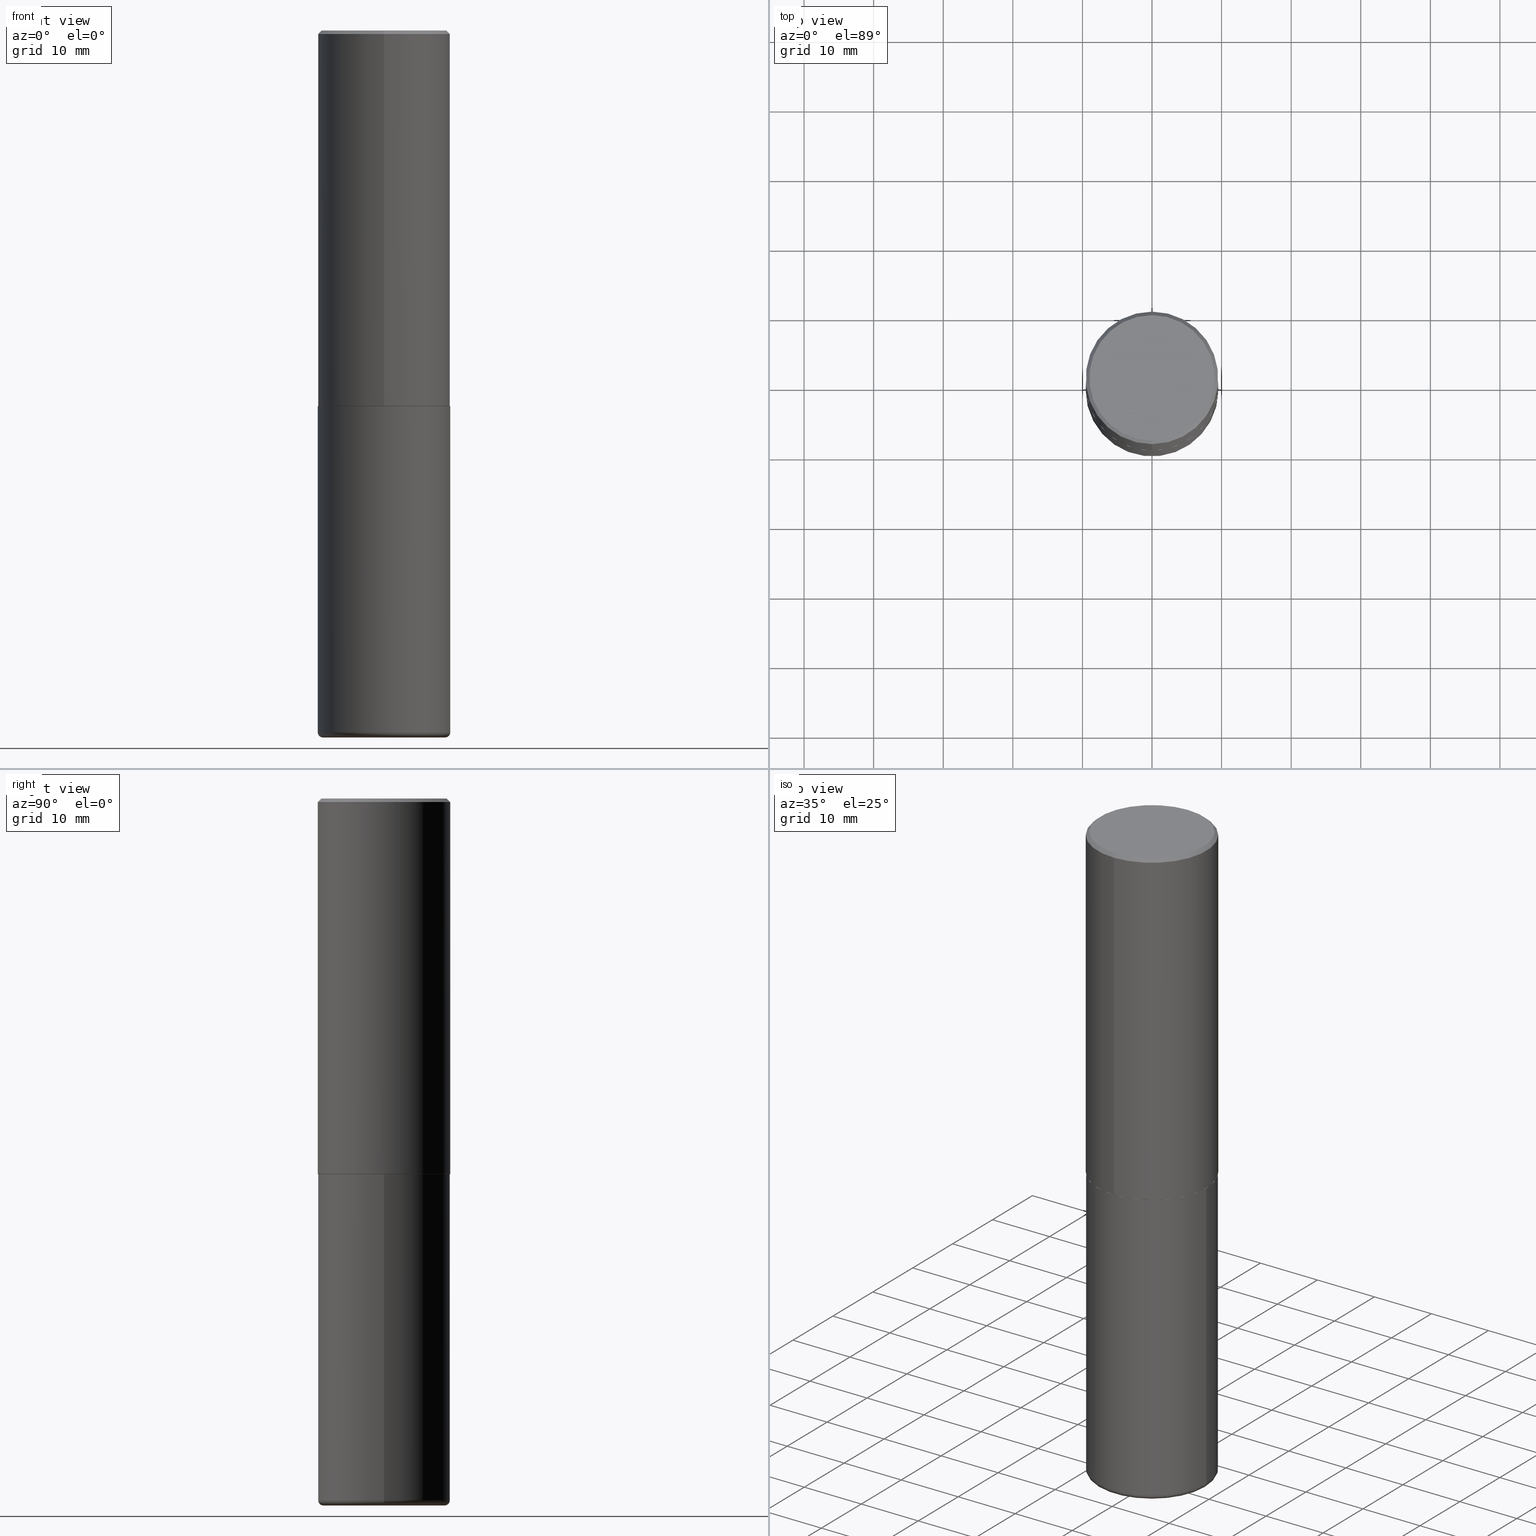
[diagram: canonical four-view strip — front | top / right | iso, engineering-drawing reading convention]
A machine part, canonical four-view strip (front | top / right | iso — engineering-drawing reading convention). The complete STEP part file that produces these views, byte-faithful:
ISO-10303-21;
HEADER;
FILE_DESCRIPTION (( 'STEP AP203' ),
    '1' );
FILE_NAME ('77251.STEP',
    '2024-03-06T16:38:52',
    ( '' ),
    ( '' ),
    'SwSTEP 2.0',
    'SolidWorks 2023',
    '' );
FILE_SCHEMA (( 'CONFIG_CONTROL_DESIGN' ));
ENDSEC;

DATA;
#1 = DIRECTION ( 'NONE',  ( -2.445468806185136597E-29, 3.491481338843145583E-15, 1.000000000000000000 ) ) ;
#2 = CARTESIAN_POINT ( 'NONE',  ( 2.664535259100376880E-15, 0.3750000000000002220, -1.309772154642007612E-15 ) ) ;
#3 = EDGE_CURVE ( 'NONE', #316, #27, #89, .T. ) ;
#4 = EDGE_LOOP ( 'NONE', ( #300, #8 ) ) ;
#5 = AXIS2_PLACEMENT_3D ( 'NONE', #256, #184, #371 ) ;
#6 = CIRCLE ( 'NONE', #347, 0.02999999999999995379 ) ;
#7 = CARTESIAN_POINT ( 'NONE',  ( -1.576020116281570290E-45, 2.251741140787182714E-31, 6.446945178995578068E-17 ) ) ;
#8 = ORIENTED_EDGE ( 'NONE', *, *, #265, .T. ) ;
#9 = ADVANCED_FACE ( 'NONE', ( #55 ), #58, .F. ) ;
#10 = ORIENTED_EDGE ( 'NONE', *, *, #336, .F. ) ;
#11 = ORIENTED_EDGE ( 'NONE', *, *, #405, .T. ) ;
#12 = AXIS2_PLACEMENT_3D ( 'NONE', #68, #164, #163 ) ;
#13 = LINE ( 'NONE', #235, #143 ) ;
#14 = ORIENTED_EDGE ( 'NONE', *, *, #153, .F. ) ;
#15 = DATE_TIME_ROLE ( 'classification_date' ) ;
#16 = ORIENTED_EDGE ( 'NONE', *, *, #367, .T. ) ;
#17 = COORDINATED_UNIVERSAL_TIME_OFFSET ( 5, 0, .BEHIND. ) ;
#18 = CARTESIAN_POINT ( 'NONE',  ( 0.000000000000000000, 0.000000000000000000, 0.000000000000000000 ) ) ;
#19 = EDGE_CURVE ( 'NONE', #272, #74, #225, .T. ) ;
#20 = CALENDAR_DATE ( 2024, 6, 3 ) ;
#21 = CIRCLE ( 'NONE', #182, 0.3549999999999999822 ) ;
#22 = AXIS2_PLACEMENT_3D ( 'NONE', #398, #156, #368 ) ;
#23 = CARTESIAN_POINT ( 'NONE',  ( 4.889199683026055945E-31, -6.985451491424065481E-17, -0.02000000000000008715 ) ) ;
#24 = APPROVAL_ROLE ( '' ) ;
#25 = FACE_OUTER_BOUND ( 'NONE', #168, .T. ) ;
#26 = APPLICATION_PROTOCOL_DEFINITION ( 'international standard', 'config_control_design', 1994, #174 ) ;
#27 = VERTEX_POINT ( 'NONE', #149 ) ;
#28 = DIRECTION ( 'NONE',  ( -2.445468806185136597E-29, 3.491481338843145583E-15, 1.000000000000000000 ) ) ;
#29 = TOROIDAL_SURFACE ( 'NONE', #280, 0.3450000000000000289, 0.02999999999999998848 ) ;
#30 = CARTESIAN_POINT ( 'NONE',  ( 4.889199683026055945E-31, -6.985451491424065481E-17, -0.02000000000000008715 ) ) ;
#31 = ADVANCED_FACE ( 'NONE', ( #349 ), #338, .T. ) ;
#32 = CARTESIAN_POINT ( 'NONE',  ( 4.889199683026055945E-31, -6.985451491424065481E-17, -0.02000000000000008715 ) ) ;
#33 = AXIS2_PLACEMENT_3D ( 'NONE', #50, #283, #321 ) ;
#34 = CARTESIAN_POINT ( 'NONE',  ( 0.000000000000000000, 0.000000000000000000, 0.000000000000000000 ) ) ;
#35 = ADVANCED_FACE ( 'NONE', ( #25 ), #310, .T. ) ;
#36 = DIRECTION ( 'NONE',  ( -2.444599841513017620E-29, 3.492725745712017802E-15, 1.000000000000000000 ) ) ;
#37 = ORIENTED_EDGE ( 'NONE', *, *, #367, .F. ) ;
#38 = CARTESIAN_POINT ( 'NONE',  ( 9.708511160554992872E-29, -1.386118091520728738E-14, -3.970000000000000195 ) ) ;
#39 = ORIENTED_EDGE ( 'NONE', *, *, #319, .T. ) ;
#40 = AXIS2_PLACEMENT_3D ( 'NONE', #180, #102, #112 ) ;
#41 = ORIENTED_EDGE ( 'NONE', *, *, #19, .T. ) ;
#42 = LENGTH_MEASURE_WITH_UNIT ( LENGTH_MEASURE( 0.02539999999999999897 ), #175 );
#43 = FACE_OUTER_BOUND ( 'NONE', #376, .T. ) ;
#44 = EDGE_LOOP ( 'NONE', ( #178, #11, #39, #411 ) ) ;
#45 = DIRECTION ( 'NONE',  ( -6.982962677686266711E-15, -1.000000000000000000, 3.652203200085913145E-15 ) ) ;
#46 = ADVANCED_FACE ( 'NONE', ( #341 ), #399, .T. ) ;
#47 = PERSON_AND_ORGANIZATION_ROLE ( 'design_owner' ) ;
#48 = ORIENTED_EDGE ( 'NONE', *, *, #72, .T. ) ;
#49 = DATE_AND_TIME ( #57, #402 ) ;
#50 = CARTESIAN_POINT ( 'NONE',  ( 9.781875224740546387E-29, -1.396592535537258233E-14, -4.000000000000000000 ) ) ;
#51 = PERSON_AND_ORGANIZATION ( #185, #131 ) ;
#52 = AXIS2_PLACEMENT_3D ( 'NONE', #32, #289, #129 ) ;
#53 = CIRCLE ( 'NONE', #243, 0.3750000000000000555 ) ;
#54 = DIMENSIONAL_EXPONENTS ( 1.000000000000000000, 0.000000000000000000, 0.000000000000000000, 0.000000000000000000, 0.000000000000000000, 0.000000000000000000, 0.000000000000000000 ) ;
#55 = FACE_OUTER_BOUND ( 'NONE', #4, .T. ) ;
#56 = PRODUCT_RELATED_PRODUCT_CATEGORY ( 'detail', '', ( #96 ) ) ;
#57 = CALENDAR_DATE ( 2024, 6, 3 ) ;
#58 = PLANE ( 'NONE',  #170 ) ;
#59 = EDGE_CURVE ( 'NONE', #374, #189, #197, .T. ) ;
#60 = CARTESIAN_POINT ( 'NONE',  ( 5.192330063373648592E-29, -7.418549483892325607E-15, -2.123999999999999666 ) ) ;
#61 = CARTESIAN_POINT ( 'NONE',  ( 0.3749999999999999445, -1.647979191933963740E-14, -3.970000000000000195 ) ) ;
#62 = AXIS2_PLACEMENT_3D ( 'NONE', #200, #233, #355 ) ;
#63 =( GEOMETRIC_REPRESENTATION_CONTEXT ( 3 ) GLOBAL_UNCERTAINTY_ASSIGNED_CONTEXT ( ( #401 ) ) GLOBAL_UNIT_ASSIGNED_CONTEXT ( ( #177, #344, #309 ) ) REPRESENTATION_CONTEXT ( 'NONE', 'WORKASPACE' ) );
#64 = ADVANCED_FACE ( 'NONE', ( #85 ), #372, .T. ) ;
#65 = CARTESIAN_POINT ( 'NONE',  ( -2.572686749164324336E-15, -0.3750000000000001665, -0.01999999999999877570 ) ) ;
#66 = PLANE ( 'NONE',  #117 ) ;
#67 = CC_DESIGN_PERSON_AND_ORGANIZATION_ASSIGNMENT ( #277, #154, ( #236 ) ) ;
#68 = CARTESIAN_POINT ( 'NONE',  ( 5.194774663215162724E-29, -7.422042209638035708E-15, -2.125000000000000000 ) ) ;
#69 = AXIS2_PLACEMENT_3D ( 'NONE', #354, #199, #418 ) ;
#70 = CC_DESIGN_APPROVAL ( #94, ( #224 ) ) ;
#71 = FACE_OUTER_BOUND ( 'NONE', #217, .T. ) ;
#72 = EDGE_CURVE ( 'NONE', #369, #27, #357, .T. ) ;
#73 = CARTESIAN_POINT ( 'NONE',  ( 9.781875224740546387E-29, -1.396592535537258233E-14, -4.000000000000000000 ) ) ;
#74 = VERTEX_POINT ( 'NONE', #65 ) ;
#75 = APPROVAL ( #311, 'UNSPECIFIED' ) ;
#76 = FACE_OUTER_BOUND ( 'NONE', #246, .T. ) ;
#77 = ORIENTED_EDGE ( 'NONE', *, *, #153, .T. ) ;
#78 = CC_DESIGN_APPROVAL ( #364, ( #236 ) ) ;
#79 = CARTESIAN_POINT ( 'NONE',  ( -2.611628041454611937E-15, -0.3740000000000074931, -2.124999999999998668 ) ) ;
#80 = ORIENTED_EDGE ( 'NONE', *, *, #138, .F. ) ;
#81 = DIRECTION ( 'NONE',  ( 5.024295867788576727E-15, 0.7071067811866224018, 0.7071067811864726327 ) ) ;
#82 = CONICAL_SURFACE ( 'NONE', #324, 0.3750000000000001110, 0.7853981633974477239 ) ;
#83 = AXIS2_PLACEMENT_3D ( 'NONE', #229, #380, #130 ) ;
#84 = DATE_TIME_ROLE ( 'creation_date' ) ;
#85 = FACE_OUTER_BOUND ( 'NONE', #247, .T. ) ;
#86 = VERTEX_POINT ( 'NONE', #195 ) ;
#87 = APPROVAL_STATUS ( 'not_yet_approved' ) ;
#88 = CC_DESIGN_PERSON_AND_ORGANIZATION_ASSIGNMENT ( #250, #284, ( #224 ) ) ;
#89 = LINE ( 'NONE', #93, #370 ) ;
#90 = APPLICATION_PROTOCOL_DEFINITION ( 'international standard', 'config_control_design', 1994, #301 ) ;
#91 = CIRCLE ( 'NONE', #62, 0.3750000000000000555 ) ;
#92 = DIRECTION ( 'NONE',  ( -2.444599841513017620E-29, 3.492725745712017802E-15, 1.000000000000000000 ) ) ;
#93 = CARTESIAN_POINT ( 'NONE',  ( -2.611628041454611937E-15, -0.3740000000000074931, -2.124999999999998668 ) ) ;
#94 = APPROVAL ( #87, 'UNSPECIFIED' ) ;
#95 = DIRECTION ( 'NONE',  ( -6.982962677686266711E-15, -1.000000000000000000, 3.642463991552348591E-15 ) ) ;
#96 = PRODUCT ( '77251', '77251', '', ( #282 ) ) ;
#97 = LINE ( 'NONE', #413, #255 ) ;
#98 = LOCAL_TIME ( 11, 38, 52.00000000000000000, #123 ) ;
#99 = CC_DESIGN_PERSON_AND_ORGANIZATION_ASSIGNMENT ( #115, #188, ( #104 ) ) ;
#100 = CARTESIAN_POINT ( 'NONE',  ( 5.192330063373648592E-29, -7.418549483892325607E-15, -2.123999999999999666 ) ) ;
#101 = DIRECTION ( 'NONE',  ( -6.982962677686265922E-15, -1.000000000000000000, 3.492725745712017407E-15 ) ) ;
#102 = DIRECTION ( 'NONE',  ( -2.444599841513017620E-29, 3.492725745712017802E-15, 1.000000000000000000 ) ) ;
#103 = CLOSED_SHELL ( 'NONE', ( #392, #331, #9, #46, #128, #64 ) ) ;
#104 = SECURITY_CLASSIFICATION ( '', '', #307 ) ;
#105 = CARTESIAN_POINT ( 'NONE',  ( 9.708511160554992872E-29, -1.386118091520728738E-14, -3.970000000000000195 ) ) ;
#106 = CC_DESIGN_PERSON_AND_ORGANIZATION_ASSIGNMENT ( #51, #315, ( #236 ) ) ;
#107 = CARTESIAN_POINT ( 'NONE',  ( 0.000000000000000000, 0.000000000000000000, 0.000000000000000000 ) ) ;
#108 = ORIENTED_EDGE ( 'NONE', *, *, #228, .T. ) ;
#109 = CARTESIAN_POINT ( 'NONE',  ( 0.3450000000000000289, -1.637504747917434403E-14, -4.000000000000000000 ) ) ;
#110 = ORIENTED_EDGE ( 'NONE', *, *, #410, .T. ) ;
#111 = CIRCLE ( 'NONE', #118, 0.3450000000000000289 ) ;
#112 = DIRECTION ( 'NONE',  ( -6.982962677686266711E-15, -1.000000000000000000, 3.652203200085913145E-15 ) ) ;
#113 = APPROVAL_DATE_TIME ( #375, #94 ) ;
#114 = EDGE_CURVE ( 'NONE', #269, #74, #258, .T. ) ;
#115 = PERSON_AND_ORGANIZATION ( #185, #131 ) ;
#116 = CARTESIAN_POINT ( 'NONE',  ( 5.196621213143415268E-29, -7.419397845041683624E-15, -2.125000000000000000 ) ) ;
#117 = AXIS2_PLACEMENT_3D ( 'NONE', #230, #201, #322 ) ;
#118 = AXIS2_PLACEMENT_3D ( 'NONE', #73, #210, #327 ) ;
#119 = COORDINATED_UNIVERSAL_TIME_OFFSET ( 5, 0, .BEHIND. ) ;
#120 = DIRECTION ( 'NONE',  ( -2.444599841513017620E-29, 3.492725745712017802E-15, 1.000000000000000000 ) ) ;
#121 = CALENDAR_DATE ( 2024, 6, 3 ) ;
#122 = ORIENTED_EDGE ( 'NONE', *, *, #346, .T. ) ;
#123 = COORDINATED_UNIVERSAL_TIME_OFFSET ( 5, 0, .BEHIND. ) ;
#124 = ORIENTED_EDGE ( 'NONE', *, *, #405, .F. ) ;
#125 = AXIS2_PLACEMENT_3D ( 'NONE', #107, #216, #270 ) ;
#126 = DIRECTION ( 'NONE',  ( -1.000000000000000000, 6.982962677686265922E-15, -4.876176775795935793E-29 ) ) ;
#127 = CARTESIAN_POINT ( 'NONE',  ( 5.196621213143415268E-29, -7.419397845041683624E-15, -2.125000000000000000 ) ) ;
#128 = ADVANCED_FACE ( 'NONE', ( #350 ), #29, .T. ) ;
#129 = DIRECTION ( 'NONE',  ( -6.982962677686265922E-15, -1.000000000000000000, 3.494488891895535640E-15 ) ) ;
#130 = DIRECTION ( 'NONE',  ( 6.982962677686265922E-15, 1.000000000000000000, -3.494488891895535640E-15 ) ) ;
#131 = ORGANIZATION ( 'UNSPECIFIED', 'UNSPECIFIED', '' ) ;
#132 = CARTESIAN_POINT ( 'NONE',  ( -1.576020116281570290E-45, 2.251741140787182714E-31, 6.446945178995578068E-17 ) ) ;
#133 = DIRECTION ( 'NONE',  ( 1.000000000000000000, -6.982962677686266711E-15, 0.000000000000000000 ) ) ;
#134 = CARTESIAN_POINT ( 'NONE',  ( 2.664535259100402913E-15, 0.3749999999999928391, -2.124000000000000998 ) ) ;
#135 = CLOSED_SHELL ( 'NONE', ( #31, #35, #260, #179, #237, #295, #389, #159 ) ) ;
#136 = DIRECTION ( 'NONE',  ( -2.445468806185136877E-29, 3.491481338843145188E-15, 1.000000000000000000 ) ) ;
#137 = ORIENTED_EDGE ( 'NONE', *, *, #3, .F. ) ;
#138 = EDGE_CURVE ( 'NONE', #147, #388, #204, .T. ) ;
#139 = ADVANCED_BREP_SHAPE_REPRESENTATION ( '77251', ( #202, #203, #22 ), #63 ) ;
#140 = ORIENTED_EDGE ( 'NONE', *, *, #253, .T. ) ;
#141 = DIRECTION ( 'NONE',  ( -2.444599841513017620E-29, 3.492725745712018196E-15, 1.000000000000000000 ) ) ;
#142 = EDGE_LOOP ( 'NONE', ( #304, #48, #16, #329 ) ) ;
#143 = VECTOR ( 'NONE', #136, 39.37007874015748143 ) ;
#144 = EDGE_CURVE ( 'NONE', #221, #146, #91, .T. ) ;
#145 = DIRECTION ( 'NONE',  ( -6.982962677686265922E-15, -1.000000000000000000, 3.492725745712018196E-15 ) ) ;
#146 = VERTEX_POINT ( 'NONE', #61 ) ;
#147 = VERTEX_POINT ( 'NONE', #162 ) ;
#148 = APPROVAL_ROLE ( '' ) ;
#149 = CARTESIAN_POINT ( 'NONE',  ( -2.618611004132299924E-15, -0.3750000000000077716, -2.123999999999998334 ) ) ;
#150 = AXIS2_PLACEMENT_3D ( 'NONE', #332, #393, #145 ) ;
#151 = DATE_AND_TIME ( #20, #98 ) ;
#152 = DIRECTION ( 'NONE',  ( 1.000000000000000000, -6.982962677686265922E-15, 4.876176775795935793E-29 ) ) ;
#153 = EDGE_CURVE ( 'NONE', #27, #369, #191, .T. ) ;
#154 = PERSON_AND_ORGANIZATION_ROLE ( 'design_supplier' ) ;
#155 = ORIENTED_EDGE ( 'NONE', *, *, #351, .F. ) ;
#156 = DIRECTION ( 'NONE',  ( 0.000000000000000000, 0.000000000000000000, 1.000000000000000000 ) ) ;
#157 = DIRECTION ( 'NONE',  ( -6.982962677686266711E-15, -1.000000000000000000, 3.492725745712018196E-15 ) ) ;
#158 = AXIS2_PLACEMENT_3D ( 'NONE', #223, #339, #45 ) ;
#159 = ADVANCED_FACE ( 'NONE', ( #232 ), #66, .F. ) ;
#160 = AXIS2_PLACEMENT_3D ( 'NONE', #105, #207, #334 ) ;
#161 = DIRECTION ( 'NONE',  ( -2.444599841513017620E-29, 3.492725745712017802E-15, 1.000000000000000000 ) ) ;
#162 = CARTESIAN_POINT ( 'NONE',  ( 0.3750000000000000555, -1.003800884917403364E-14, -2.125000000000000000 ) ) ;
#163 = DIRECTION ( 'NONE',  ( -6.982962677686266711E-15, -1.000000000000000000, 3.652203200085913145E-15 ) ) ;
#164 = DIRECTION ( 'NONE',  ( -2.444599841513017620E-29, 3.492725745712017802E-15, 1.000000000000000000 ) ) ;
#165 = APPROVAL_PERSON_ORGANIZATION ( #226, #364, #148 ) ;
#166 = FACE_OUTER_BOUND ( 'NONE', #333, .T. ) ;
#167 = DIRECTION ( 'NONE',  ( -2.444599841513017620E-29, 3.492725745712018196E-15, 1.000000000000000000 ) ) ;
#168 = EDGE_LOOP ( 'NONE', ( #77, #122, #251, #37 ) ) ;
#169 = CARTESIAN_POINT ( 'NONE',  ( 5.194774663215162724E-29, -7.422042209638035708E-15, -2.125000000000000000 ) ) ;
#170 = AXIS2_PLACEMENT_3D ( 'NONE', #116, #378, #126 ) ;
#171 = ORIENTED_EDGE ( 'NONE', *, *, #228, .F. ) ;
#172 = TOROIDAL_SURFACE ( 'NONE', #160, 0.3450000000000000289, 0.02999999999999998848 ) ;
#173 = VECTOR ( 'NONE', #81, 39.37007874015748143 ) ;
#174 = APPLICATION_CONTEXT ( 'configuration controlled 3d designs of mechanical parts and assemblies' ) ;
#175 =( LENGTH_UNIT ( ) NAMED_UNIT ( * ) SI_UNIT ( $, .METRE. ) );
#176 = EDGE_LOOP ( 'NONE', ( #303, #285, #194, #41 ) ) ;
#177 =( CONVERSION_BASED_UNIT ( 'INCH', #42 ) LENGTH_UNIT ( ) NAMED_UNIT ( #54 ) );
#178 = ORIENTED_EDGE ( 'NONE', *, *, #253, .F. ) ;
#179 = ADVANCED_FACE ( 'NONE', ( #384 ), #82, .T. ) ;
#180 = CARTESIAN_POINT ( 'NONE',  ( 5.194774663215162724E-29, -7.422042209638035708E-15, -2.125000000000000000 ) ) ;
#181 = ORIENTED_EDGE ( 'NONE', *, *, #59, .T. ) ;
#182 = AXIS2_PLACEMENT_3D ( 'NONE', #132, #262, #101 ) ;
#183 = CIRCLE ( 'NONE', #412, 0.3739999999999999991 ) ;
#184 = DIRECTION ( 'NONE',  ( -2.445468806185136597E-29, 3.491481338843145583E-15, 1.000000000000000000 ) ) ;
#185 = PERSON ( 'UNSPECIFIED', 'UNSPECIFIED', 'UNSPECIFIED', ('UNSPECIFIED'), ('UNSPECIFIED'), ('UNSPECIFIED') ) ;
#186 = CALENDAR_DATE ( 2024, 6, 3 ) ;
#187 = ORIENTED_EDGE ( 'NONE', *, *, #379, .T. ) ;
#188 = PERSON_AND_ORGANIZATION_ROLE ( 'classification_officer' ) ;
#189 = VERTEX_POINT ( 'NONE', #290 ) ;
#190 = EDGE_CURVE ( 'NONE', #74, #272, #242, .T. ) ;
#191 = CIRCLE ( 'NONE', #417, 0.3750000000000002776 ) ;
#192 = PERSON_AND_ORGANIZATION ( #185, #131 ) ;
#193 = ORIENTED_EDGE ( 'NONE', *, *, #265, .F. ) ;
#194 = ORIENTED_EDGE ( 'NONE', *, *, #336, .T. ) ;
#195 = CARTESIAN_POINT ( 'NONE',  ( 2.548781377355487507E-15, 0.3549999999999999822, -1.175448187937810043E-15 ) ) ;
#196 = EDGE_CURVE ( 'NONE', #403, #316, #292, .T. ) ;
#197 = CIRCLE ( 'NONE', #5, 0.3450000000000000289 ) ;
#198 = VECTOR ( 'NONE', #208, 39.37007874015748143 ) ;
#199 = DIRECTION ( 'NONE',  ( 7.105427357601001859E-15, 1.000000000000000000, -3.491481338843145583E-15 ) ) ;
#200 = CARTESIAN_POINT ( 'NONE',  ( 9.708511160554992872E-29, -1.386118091520728738E-14, -3.970000000000000195 ) ) ;
#201 = DIRECTION ( 'NONE',  ( 2.444599841513016780E-29, -3.492725745712018196E-15, -1.000000000000000000 ) ) ;
#202 = MANIFOLD_SOLID_BREP ( 'Body-Move/Copy2[1]', #103 ) ;
#203 = MANIFOLD_SOLID_BREP ( 'Body-Move/Copy2[2]', #135 ) ;
#204 = CIRCLE ( 'NONE', #287, 0.3750000000000000555 ) ;
#205 = CARTESIAN_POINT ( 'NONE',  ( -0.3749999999999999445, -1.119664565610691011E-14, -3.970000000000000195 ) ) ;
#206 = CC_DESIGN_APPROVAL ( #75, ( #104 ) ) ;
#207 = DIRECTION ( 'NONE',  ( -2.445468806185136597E-29, 3.491481338843145583E-15, 1.000000000000000000 ) ) ;
#208 = DIRECTION ( 'NONE',  ( 4.937700262164544887E-15, 0.7071067811865446862, -0.7071067811865503483 ) ) ;
#209 = ORIENTED_EDGE ( 'NONE', *, *, #59, .F. ) ;
#210 = DIRECTION ( 'NONE',  ( -2.445468806185136597E-29, 3.491481338843145583E-15, 1.000000000000000000 ) ) ;
#211 = CIRCLE ( 'NONE', #314, 0.3750000000000000555 ) ;
#212 = ORIENTED_EDGE ( 'NONE', *, *, #257, .T. ) ;
#213 = APPROVAL_PERSON_ORGANIZATION ( #218, #75, #24 ) ;
#214 = FACE_OUTER_BOUND ( 'NONE', #276, .T. ) ;
#215 = ORIENTED_EDGE ( 'NONE', *, *, #72, .F. ) ;
#216 = DIRECTION ( 'NONE',  ( -2.445468806185136597E-29, 3.491481338843145583E-15, 1.000000000000000000 ) ) ;
#217 = EDGE_LOOP ( 'NONE', ( #365, #312 ) ) ;
#218 = PERSON_AND_ORGANIZATION ( #185, #131 ) ;
#219 = DATE_AND_TIME ( #186, #268 ) ;
#220 = DIRECTION ( 'NONE',  ( -4.937700262165053702E-15, -0.7071067811866175168, 0.7071067811864775177 ) ) ;
#221 = VERTEX_POINT ( 'NONE', #205 ) ;
#222 = APPROVAL_ROLE ( '' ) ;
#223 = CARTESIAN_POINT ( 'NONE',  ( 5.194774663215162724E-29, -7.422042209638035708E-15, -2.125000000000000000 ) ) ;
#224 = PRODUCT_DEFINITION ( 'UNKNOWN', '', #236, #294 ) ;
#225 = CIRCLE ( 'NONE', #394, 0.3750000000000001110 ) ;
#226 = PERSON_AND_ORGANIZATION ( #185, #131 ) ;
#227 = CARTESIAN_POINT ( 'NONE',  ( 0.000000000000000000, 0.000000000000000000, 0.000000000000000000 ) ) ;
#228 = EDGE_CURVE ( 'NONE', #146, #147, #97, .T. ) ;
#229 = CARTESIAN_POINT ( 'NONE',  ( 4.889199683026055945E-31, -6.985451491424065481E-17, -0.02000000000000008715 ) ) ;
#230 = CARTESIAN_POINT ( 'NONE',  ( 2.478951750578624209E-15, 0.3549999999999999822, -1.207682913832788389E-15 ) ) ;
#231 = CONICAL_SURFACE ( 'NONE', #40, 0.3739999999999999991, 0.7853981633975507526 ) ;
#232 = FACE_OUTER_BOUND ( 'NONE', #308, .T. ) ;
#233 = DIRECTION ( 'NONE',  ( -2.445468806185136597E-29, 3.491481338843145583E-15, 1.000000000000000000 ) ) ;
#234 = DIRECTION ( 'NONE',  ( 1.000000000000000000, -6.982962677686266711E-15, 0.000000000000000000 ) ) ;
#235 = CARTESIAN_POINT ( 'NONE',  ( -0.3750000000000000555, 2.664535259100376091E-15, -1.844600658845589598E-29 ) ) ;
#236 = PRODUCT_DEFINITION_FORMATION_WITH_SPECIFIED_SOURCE ( 'ANY', '', #96, .NOT_KNOWN. ) ;
#237 = ADVANCED_FACE ( 'NONE', ( #381 ), #293, .T. ) ;
#238 = CARTESIAN_POINT ( 'NONE',  ( 2.618611004132351200E-15, 0.3750000000000000555, -0.02000000000000139513 ) ) ;
#239 = DIRECTION ( 'NONE',  ( -6.982962677686265922E-15, -1.000000000000000000, 3.492725745712017407E-15 ) ) ;
#240 = ORIENTED_EDGE ( 'NONE', *, *, #351, .T. ) ;
#241 = PLANE ( 'NONE',  #150 ) ;
#242 = CIRCLE ( 'NONE', #52, 0.3750000000000001110 ) ;
#243 = AXIS2_PLACEMENT_3D ( 'NONE', #38, #396, #363 ) ;
#244 = DIRECTION ( 'NONE',  ( 1.000000000000000000, -6.982962677686279332E-15, 0.000000000000000000 ) ) ;
#245 = CALENDAR_DATE ( 2024, 6, 3 ) ;
#246 = EDGE_LOOP ( 'NONE', ( #345, #361, #248, #215 ) ) ;
#247 = EDGE_LOOP ( 'NONE', ( #209, #124 ) ) ;
#248 = ORIENTED_EDGE ( 'NONE', *, *, #3, .T. ) ;
#249 = CC_DESIGN_PERSON_AND_ORGANIZATION_ASSIGNMENT ( #406, #47, ( #96 ) ) ;
#250 = PERSON_AND_ORGANIZATION ( #185, #131 ) ;
#251 = ORIENTED_EDGE ( 'NONE', *, *, #190, .F. ) ;
#252 = APPROVAL_DATE_TIME ( #151, #75 ) ;
#253 = EDGE_CURVE ( 'NONE', #189, #221, #266, .T. ) ;
#254 = DIRECTION ( 'NONE',  ( -6.982962677686265922E-15, -1.000000000000000000, 3.494488891895535640E-15 ) ) ;
#255 = VECTOR ( 'NONE', #259, 39.37007874015748143 ) ;
#256 = CARTESIAN_POINT ( 'NONE',  ( 9.781875224740546387E-29, -1.396592535537258233E-14, -4.000000000000000000 ) ) ;
#257 = EDGE_CURVE ( 'NONE', #86, #269, #21, .T. ) ;
#258 = LINE ( 'NONE', #264, #298 ) ;
#259 = DIRECTION ( 'NONE',  ( -2.445468806185136877E-29, 3.491481338843145188E-15, 1.000000000000000000 ) ) ;
#260 = ADVANCED_FACE ( 'NONE', ( #166 ), #404, .T. ) ;
#261 = DIRECTION ( 'NONE',  ( -4.851104656540961119E-15, -0.7071067811865495711, -0.7071067811865454633 ) ) ;
#262 = DIRECTION ( 'NONE',  ( -2.444599841513017620E-29, 3.492725745712017802E-15, 1.000000000000000000 ) ) ;
#263 = PRODUCT_DEFINITION_SHAPE ( 'NONE', 'NONE',  #224 ) ;
#264 = CARTESIAN_POINT ( 'NONE',  ( -2.572686749164324336E-15, -0.3750000000000001665, -0.01999999999999877570 ) ) ;
#265 = EDGE_CURVE ( 'NONE', #388, #147, #211, .T. ) ;
#266 = CIRCLE ( 'NONE', #69, 0.02999999999999995379 ) ;
#267 = CYLINDRICAL_SURFACE ( 'NONE', #125, 0.3750000000000000555 ) ;
#268 = LOCAL_TIME ( 11, 38, 52.00000000000000000, #17 ) ;
#269 = VERTEX_POINT ( 'NONE', #386 ) ;
#270 = DIRECTION ( 'NONE',  ( 1.000000000000000000, -6.982962677686265922E-15, 4.876176775795935793E-29 ) ) ;
#271 = LINE ( 'NONE', #390, #198 ) ;
#272 = VERTEX_POINT ( 'NONE', #238 ) ;
#273 = CARTESIAN_POINT ( 'NONE',  ( 0.3450000000000000289, -1.627030303900905066E-14, -3.970000000000000195 ) ) ;
#274 = AXIS2_PLACEMENT_3D ( 'NONE', #60, #320, #95 ) ;
#275 = CARTESIAN_POINT ( 'NONE',  ( 2.657429831742826359E-15, 0.3739999999999925606, -2.125000000000001332 ) ) ;
#276 = EDGE_LOOP ( 'NONE', ( #181, #140, #343, #397 ) ) ;
#277 = PERSON_AND_ORGANIZATION ( #185, #131 ) ;
#278 = ORIENTED_EDGE ( 'NONE', *, *, #414, .F. ) ;
#279 = EDGE_LOOP ( 'NONE', ( #110, #407, #14, #137 ) ) ;
#280 = AXIS2_PLACEMENT_3D ( 'NONE', #318, #28, #296 ) ;
#281 = APPROVAL_PERSON_ORGANIZATION ( #192, #94, #222 ) ;
#282 = MECHANICAL_CONTEXT ( 'NONE', #174, 'mechanical' ) ;
#283 = DIRECTION ( 'NONE',  ( 2.438088387897960049E-29, -3.491481338843145188E-15, -1.000000000000000000 ) ) ;
#284 = PERSON_AND_ORGANIZATION_ROLE ( 'creator' ) ;
#285 = ORIENTED_EDGE ( 'NONE', *, *, #257, .F. ) ;
#286 = DIRECTION ( 'NONE',  ( -2.445468806185136597E-29, 3.491481338843145583E-15, 1.000000000000000000 ) ) ;
#287 = AXIS2_PLACEMENT_3D ( 'NONE', #127, #352, #234 ) ;
#288 = LOCAL_TIME ( 11, 38, 52.00000000000000000, #119 ) ;
#289 = DIRECTION ( 'NONE',  ( -2.444599841513017620E-29, 3.492725745712017802E-15, 1.000000000000000000 ) ) ;
#290 = CARTESIAN_POINT ( 'NONE',  ( -0.3450000000000000289, -1.135559928655357428E-14, -4.000000000000000000 ) ) ;
#291 = DIRECTION ( 'NONE',  ( -6.982962677686266711E-15, -1.000000000000000000, 3.492725745712018196E-15 ) ) ;
#292 = CIRCLE ( 'NONE', #12, 0.3739999999999999991 ) ;
#293 = CYLINDRICAL_SURFACE ( 'NONE', #382, 0.3750000000000002220 ) ;
#294 = DESIGN_CONTEXT ( 'detailed design', #301, 'design' ) ;
#295 = ADVANCED_FACE ( 'NONE', ( #76 ), #231, .T. ) ;
#296 = DIRECTION ( 'NONE',  ( 1.000000000000000000, -6.982962677686263555E-15, 4.883557194083111219E-29 ) ) ;
#297 = CARTESIAN_POINT ( 'NONE',  ( 2.660982545421628047E-15, 0.3739999999999925606, -2.125000000000001332 ) ) ;
#298 = VECTOR ( 'NONE', #261, 39.37007874015748143 ) ;
#299 = DIRECTION ( 'NONE',  ( -6.982962677686266711E-15, -1.000000000000000000, 3.652203200085913145E-15 ) ) ;
#300 = ORIENTED_EDGE ( 'NONE', *, *, #138, .T. ) ;
#301 = APPLICATION_CONTEXT ( 'configuration controlled 3d designs of mechanical parts and assemblies' ) ;
#302 = CARTESIAN_POINT ( 'NONE',  ( -0.3750000000000000555, -7.975754121024110595E-15, -2.125000000000000000 ) ) ;
#303 = ORIENTED_EDGE ( 'NONE', *, *, #114, .F. ) ;
#304 = ORIENTED_EDGE ( 'NONE', *, *, #346, .F. ) ;
#305 = LINE ( 'NONE', #2, #325 ) ;
#306 = ORIENTED_EDGE ( 'NONE', *, *, #144, .T. ) ;
#307 = SECURITY_CLASSIFICATION_LEVEL ( 'unclassified' ) ;
#308 = EDGE_LOOP ( 'NONE', ( #212, #335 ) ) ;
#309 =( NAMED_UNIT ( * ) SI_UNIT ( $, .STERADIAN. ) SOLID_ANGLE_UNIT ( ) );
#310 = CYLINDRICAL_SURFACE ( 'NONE', #362, 0.3750000000000002220 ) ;
#311 = APPROVAL_STATUS ( 'not_yet_approved' ) ;
#312 = ORIENTED_EDGE ( 'NONE', *, *, #196, .F. ) ;
#313 = CC_DESIGN_DATE_AND_TIME_ASSIGNMENT ( #219, #84, ( #224 ) ) ;
#314 = AXIS2_PLACEMENT_3D ( 'NONE', #416, #1, #133 ) ;
#315 = PERSON_AND_ORGANIZATION_ROLE ( 'creator' ) ;
#316 = VERTEX_POINT ( 'NONE', #79 ) ;
#317 = ORIENTED_EDGE ( 'NONE', *, *, #114, .T. ) ;
#318 = CARTESIAN_POINT ( 'NONE',  ( 9.708511160554992872E-29, -1.386118091520728738E-14, -3.970000000000000195 ) ) ;
#319 = EDGE_CURVE ( 'NONE', #374, #146, #6, .T. ) ;
#320 = DIRECTION ( 'NONE',  ( -2.444599841513017620E-29, 3.492725745712017802E-15, 1.000000000000000000 ) ) ;
#321 = DIRECTION ( 'NONE',  ( -1.000000000000000000, 6.982962677686265922E-15, -4.876176775795935793E-29 ) ) ;
#322 = DIRECTION ( 'NONE',  ( 6.982962677686265922E-15, 1.000000000000000000, -3.492725745712018196E-15 ) ) ;
#323 = EDGE_CURVE ( 'NONE', #403, #369, #366, .T. ) ;
#324 = AXIS2_PLACEMENT_3D ( 'NONE', #30, #385, #356 ) ;
#325 = VECTOR ( 'NONE', #141, 39.37007874015748143 ) ;
#326 = DIRECTION ( 'NONE',  ( -2.444599841513017620E-29, 3.492725745712017802E-15, 1.000000000000000000 ) ) ;
#327 = DIRECTION ( 'NONE',  ( 1.000000000000000000, -6.982962677686267499E-15, 0.000000000000000000 ) ) ;
#328 = DIRECTION ( 'NONE',  ( -6.982962677686266711E-15, -1.000000000000000000, 3.491481338843145583E-15 ) ) ;
#329 = ORIENTED_EDGE ( 'NONE', *, *, #19, .F. ) ;
#330 = DIRECTION ( 'NONE',  ( -2.444599841513017620E-29, 3.492725745712017802E-15, 1.000000000000000000 ) ) ;
#331 = ADVANCED_FACE ( 'NONE', ( #214 ), #172, .T. ) ;
#332 = CARTESIAN_POINT ( 'NONE',  ( 5.194774663215162724E-29, -7.422042209638035708E-15, -2.125000000000000000 ) ) ;
#333 = EDGE_LOOP ( 'NONE', ( #278, #317, #391, #10 ) ) ;
#334 = DIRECTION ( 'NONE',  ( 1.000000000000000000, -6.982962677686263555E-15, 4.883557194083111219E-29 ) ) ;
#335 = ORIENTED_EDGE ( 'NONE', *, *, #414, .T. ) ;
#336 = EDGE_CURVE ( 'NONE', #86, #272, #271, .T. ) ;
#337 = SHAPE_DEFINITION_REPRESENTATION ( #263, #139 ) ;
#338 = CONICAL_SURFACE ( 'NONE', #158, 0.3739999999999999991, 0.7853981633975507526 ) ;
#339 = DIRECTION ( 'NONE',  ( -2.444599841513017620E-29, 3.492725745712017802E-15, 1.000000000000000000 ) ) ;
#340 = CC_DESIGN_SECURITY_CLASSIFICATION ( #104, ( #236 ) ) ;
#341 = FACE_OUTER_BOUND ( 'NONE', #409, .T. ) ;
#342 = COORDINATED_UNIVERSAL_TIME_OFFSET ( 5, 0, .BEHIND. ) ;
#343 = ORIENTED_EDGE ( 'NONE', *, *, #379, .F. ) ;
#344 =( NAMED_UNIT ( * ) PLANE_ANGLE_UNIT ( ) SI_UNIT ( $, .RADIAN. ) );
#345 = ORIENTED_EDGE ( 'NONE', *, *, #323, .F. ) ;
#346 = EDGE_CURVE ( 'NONE', #369, #272, #305, .T. ) ;
#347 = AXIS2_PLACEMENT_3D ( 'NONE', #273, #328, #244 ) ;
#348 = APPROVAL_DATE_TIME ( #373, #364 ) ;
#349 = FACE_OUTER_BOUND ( 'NONE', #279, .T. ) ;
#350 = FACE_OUTER_BOUND ( 'NONE', #44, .T. ) ;
#351 = EDGE_CURVE ( 'NONE', #221, #388, #13, .T. ) ;
#352 = DIRECTION ( 'NONE',  ( -2.445468806185136597E-29, 3.491481338843145583E-15, 1.000000000000000000 ) ) ;
#353 = AXIS2_PLACEMENT_3D ( 'NONE', #7, #330, #239 ) ;
#354 = CARTESIAN_POINT ( 'NONE',  ( -0.3450000000000000289, -1.140980847683494193E-14, -3.970000000000000195 ) ) ;
#355 = DIRECTION ( 'NONE',  ( 1.000000000000000000, -6.982962677686266711E-15, 0.000000000000000000 ) ) ;
#356 = DIRECTION ( 'NONE',  ( 6.982962677686265922E-15, 1.000000000000000000, -3.494488891895535640E-15 ) ) ;
#357 = CIRCLE ( 'NONE', #274, 0.3750000000000002776 ) ;
#358 = VECTOR ( 'NONE', #167, 39.37007874015748143 ) ;
#359 = LINE ( 'NONE', #360, #358 ) ;
#360 = CARTESIAN_POINT ( 'NONE',  ( -2.618611004132351594E-15, -0.3750000000000002220, 1.309772154642007612E-15 ) ) ;
#361 = ORIENTED_EDGE ( 'NONE', *, *, #196, .T. ) ;
#362 = AXIS2_PLACEMENT_3D ( 'NONE', #18, #120, #157 ) ;
#363 = DIRECTION ( 'NONE',  ( 1.000000000000000000, -6.982962677686266711E-15, 0.000000000000000000 ) ) ;
#364 = APPROVAL ( #400, 'UNSPECIFIED' ) ;
#365 = ORIENTED_EDGE ( 'NONE', *, *, #410, .F. ) ;
#366 = LINE ( 'NONE', #275, #173 ) ;
#367 = EDGE_CURVE ( 'NONE', #27, #74, #359, .T. ) ;
#368 = DIRECTION ( 'NONE',  ( 1.000000000000000000, 0.000000000000000000, 0.000000000000000000 ) ) ;
#369 = VERTEX_POINT ( 'NONE', #134 ) ;
#370 = VECTOR ( 'NONE', #220, 39.37007874015748143 ) ;
#371 = DIRECTION ( 'NONE',  ( 1.000000000000000000, -6.982962677686267499E-15, 0.000000000000000000 ) ) ;
#372 = PLANE ( 'NONE',  #33 ) ;
#373 = DATE_AND_TIME ( #245, #288 ) ;
#374 = VERTEX_POINT ( 'NONE', #109 ) ;
#375 = DATE_AND_TIME ( #121, #395 ) ;
#376 = EDGE_LOOP ( 'NONE', ( #187, #240, #80, #171 ) ) ;
#377 = CC_DESIGN_DATE_AND_TIME_ASSIGNMENT ( #49, #15, ( #104 ) ) ;
#378 = DIRECTION ( 'NONE',  ( 2.438088387897960049E-29, -3.491481338843145188E-15, -1.000000000000000000 ) ) ;
#379 = EDGE_CURVE ( 'NONE', #146, #221, #53, .T. ) ;
#380 = DIRECTION ( 'NONE',  ( 2.444599841513017620E-29, -3.492725745712017802E-15, -1.000000000000000000 ) ) ;
#381 = FACE_OUTER_BOUND ( 'NONE', #142, .T. ) ;
#382 = AXIS2_PLACEMENT_3D ( 'NONE', #34, #326, #291 ) ;
#383 = CIRCLE ( 'NONE', #353, 0.3549999999999999822 ) ;
#384 = FACE_OUTER_BOUND ( 'NONE', #176, .T. ) ;
#385 = DIRECTION ( 'NONE',  ( 2.444599841513017620E-29, -3.492725745712017802E-15, -1.000000000000000000 ) ) ;
#386 = CARTESIAN_POINT ( 'NONE',  ( -2.504081769186608610E-15, -0.3549999999999999822, 1.304387091517721851E-15 ) ) ;
#387 = AXIS2_PLACEMENT_3D ( 'NONE', #227, #286, #152 ) ;
#388 = VERTEX_POINT ( 'NONE', #302 ) ;
#389 = ADVANCED_FACE ( 'NONE', ( #71 ), #241, .F. ) ;
#390 = CARTESIAN_POINT ( 'NONE',  ( 2.618611004132351200E-15, 0.3750000000000000555, -0.02000000000000139513 ) ) ;
#391 = ORIENTED_EDGE ( 'NONE', *, *, #190, .T. ) ;
#392 = ADVANCED_FACE ( 'NONE', ( #43 ), #267, .T. ) ;
#393 = DIRECTION ( 'NONE',  ( -2.444599841513016780E-29, 3.492725745712018196E-15, 1.000000000000000000 ) ) ;
#394 = AXIS2_PLACEMENT_3D ( 'NONE', #23, #92, #254 ) ;
#395 = LOCAL_TIME ( 11, 38, 52.00000000000000000, #342 ) ;
#396 = DIRECTION ( 'NONE',  ( -2.445468806185136597E-29, 3.491481338843145583E-15, 1.000000000000000000 ) ) ;
#397 = ORIENTED_EDGE ( 'NONE', *, *, #319, .F. ) ;
#398 = CARTESIAN_POINT ( 'NONE',  ( 0.000000000000000000, 0.000000000000000000, 0.000000000000000000 ) ) ;
#399 = CYLINDRICAL_SURFACE ( 'NONE', #387, 0.3750000000000000555 ) ;
#400 = APPROVAL_STATUS ( 'not_yet_approved' ) ;
#401 = UNCERTAINTY_MEASURE_WITH_UNIT (LENGTH_MEASURE( 1.000000000000000082E-05 ), #177, 'distance_accuracy_value', 'NONE');
#402 = LOCAL_TIME ( 11, 38, 52.00000000000000000, #408 ) ;
#403 = VERTEX_POINT ( 'NONE', #297 ) ;
#404 = CONICAL_SURFACE ( 'NONE', #83, 0.3750000000000001110, 0.7853981633974477239 ) ;
#405 = EDGE_CURVE ( 'NONE', #189, #374, #111, .T. ) ;
#406 = PERSON_AND_ORGANIZATION ( #185, #131 ) ;
#407 = ORIENTED_EDGE ( 'NONE', *, *, #323, .T. ) ;
#408 = COORDINATED_UNIVERSAL_TIME_OFFSET ( 5, 0, .BEHIND. ) ;
#409 = EDGE_LOOP ( 'NONE', ( #155, #306, #108, #193 ) ) ;
#410 = EDGE_CURVE ( 'NONE', #316, #403, #183, .T. ) ;
#411 = ORIENTED_EDGE ( 'NONE', *, *, #144, .F. ) ;
#412 = AXIS2_PLACEMENT_3D ( 'NONE', #169, #36, #299 ) ;
#413 = CARTESIAN_POINT ( 'NONE',  ( 0.3750000000000000555, -2.618611004132350016E-15, 1.828566290923476203E-29 ) ) ;
#414 = EDGE_CURVE ( 'NONE', #269, #86, #383, .T. ) ;
#415 = DIRECTION ( 'NONE',  ( -6.982962677686266711E-15, -1.000000000000000000, 3.642463991552348591E-15 ) ) ;
#416 = CARTESIAN_POINT ( 'NONE',  ( 5.196621213143415268E-29, -7.419397845041683624E-15, -2.125000000000000000 ) ) ;
#417 = AXIS2_PLACEMENT_3D ( 'NONE', #100, #161, #415 ) ;
#418 = DIRECTION ( 'NONE',  ( -1.000000000000000000, 7.105427357601001859E-15, 0.000000000000000000 ) ) ;
ENDSEC;
END-ISO-10303-21;
